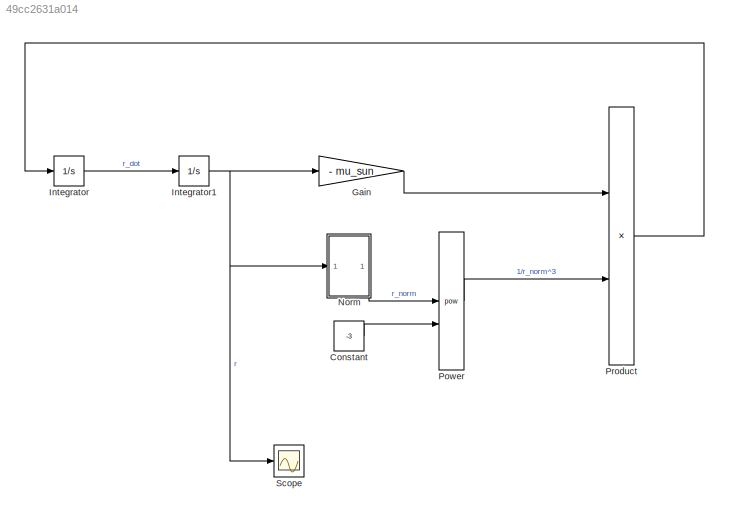
MODEL slx_49cc2631a014
KIND model
CONFIG AbsTol = auto
CONFIG EnableMultiTasking = off
CONFIG FixedStep = 0.1
CONFIG MaxStep = auto
CONFIG MinStep = auto
CONFIG RelTol = 1e-3
CONFIG SampleTimeConstraint = Unconstrained
CONFIG SolverName = FixedStepAuto
CONFIG StartTime = t0
CONFIG StopTime = tf
BLOCK [Constant] Constant
  Value = -3
BLOCK [Gain] Gain
  Gain = - mu_sun
BLOCK [Integrator] Integrator
  InitialCondition = v0
BLOCK [Integrator] Integrator1
  InitialCondition = r0
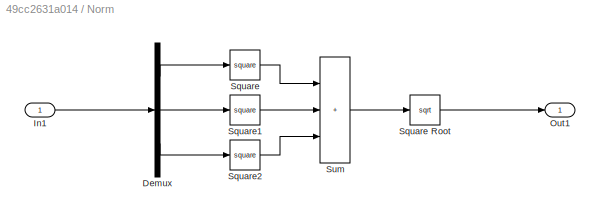
BLOCK [SubSystem] Norm
BLOCK [Demux] Norm/Demux
  Outputs = 3
BLOCK [Inport] Norm/In1
BLOCK [Outport] Norm/Out1
BLOCK [Math] Norm/Square
  Operator = square
BLOCK [Sqrt] Norm/Square Root
BLOCK [Math] Norm/Square1
  Operator = square
BLOCK [Math] Norm/Square2
  Operator = square
BLOCK [Sum] Norm/Sum
  IconShape = rectangular
  Inputs = +++
BLOCK [Math] Power
  Operator = pow
BLOCK [Product] Product
BLOCK [Scope] Scope
  Floating = off
  NumInputPorts = 1
  ScopeSpecificationString = Simulink.scopes.TimeScopeBlockCfg('CurrentConfiguration', extmgr.ConfigurationSet(extmgr.Configuration('Core','General UI',true),extmgr.Configuration('Core','Source UI',true),extmgr.Configuration('Sources','WiredSimulink',true),extmgr.Configuration('Visuals','Time Domain',true),extmgr.Configuration('Tools','Plot Navigation',true),extmgr.Configuration('Tools','Measurements',true)),'Version','2022b'...<+1ch>
LINE Constant:1 -> Power:2
LINE Gain:1 -> Product:1
NET Integrator1:1 -> Gain:1, Norm:1, Scope:1
LINE Integrator:1 -> Integrator1:1
LINE Norm/Demux:1 -> Norm/Square:1
LINE Norm/Demux:2 -> Norm/Square1:1
LINE Norm/Demux:3 -> Norm/Square2:1
LINE Norm/In1:1 -> Norm/Demux:1
LINE Norm/Square Root:1 -> Norm/Out1:1
LINE Norm/Square1:1 -> Norm/Sum:2
LINE Norm/Square2:1 -> Norm/Sum:3
LINE Norm/Square:1 -> Norm/Sum:1
LINE Norm/Sum:1 -> Norm/Square Root:1
LINE Norm:1 -> Power:1
LINE Power:1 -> Product:2
LINE Product:1 -> Integrator:1
note: NET lines group one-source signal fan-out (src -> all destinations, sorted); 1:1 wires keep LINE
